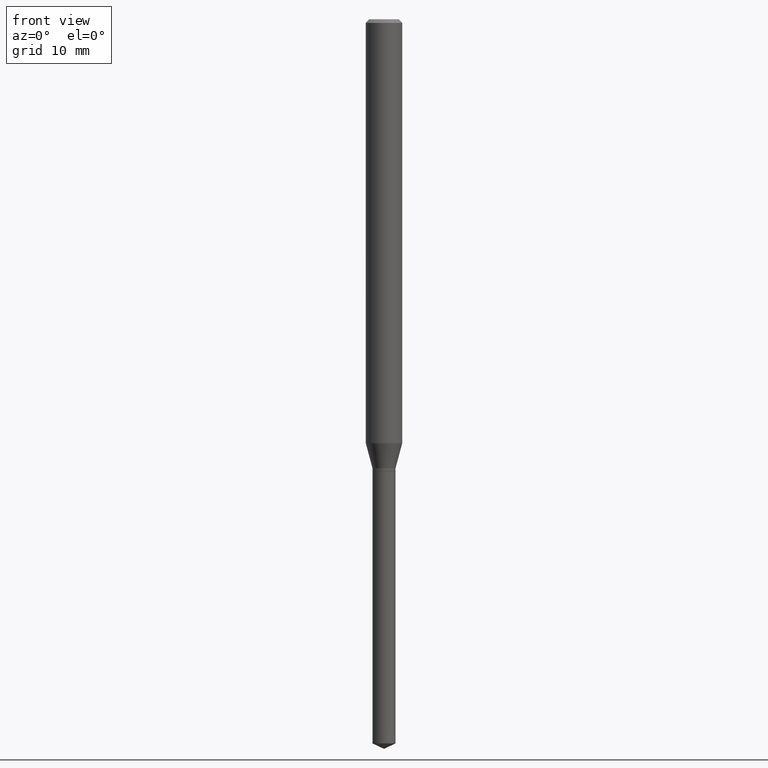
[diagram: clean part render]
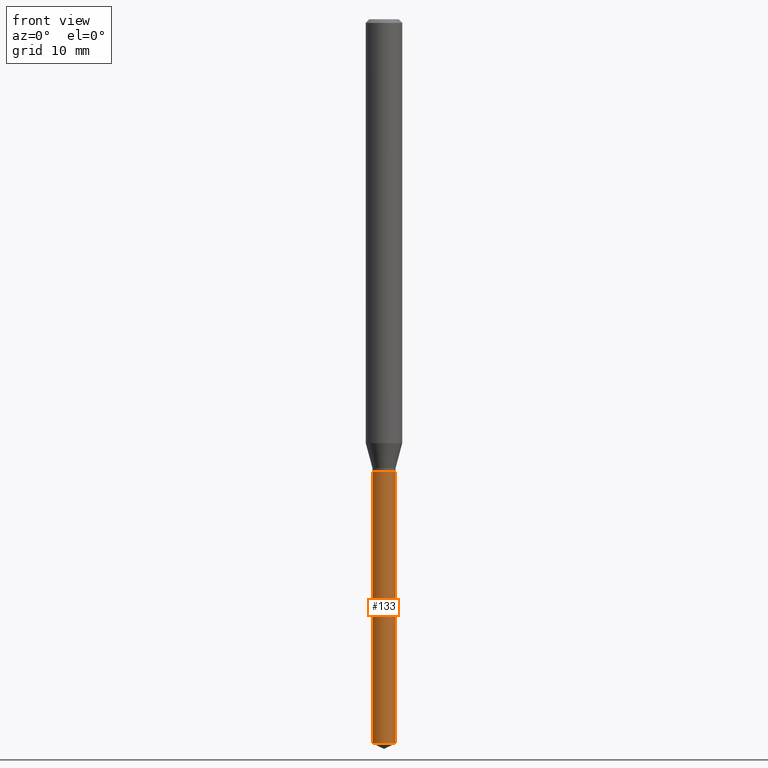
[diagram: same view with one face highlighted and labeled with its STEP entity id]
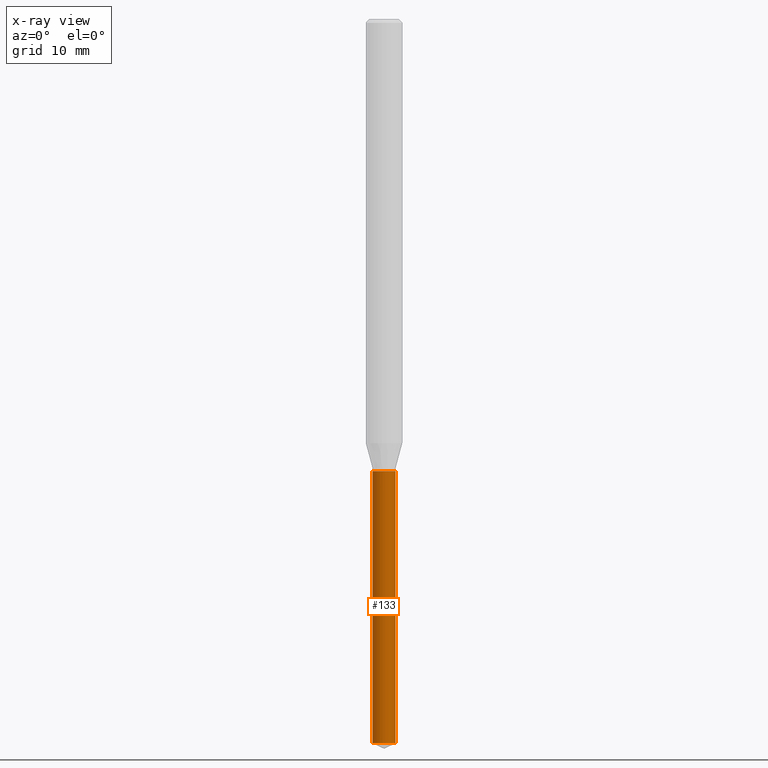
[diagram: x-ray of the same camera — body ghosted, the highlighted face saturated]
A machine part, front view. The second image highlights one B-rep face of the part: STEP entity #133.
The next image is the same camera in x-ray: the body ghosted, the highlighted face saturated — about 0% of this face is hidden behind the body in this view.
In plain terms, the highlighted cylindrical surface (edge-blend (fillet) strip) has radius 0.95 mm, axis along (-0, 0, 1).
Its self-contained STEP definition (entity closure, byte-faithful):
#9 = DIRECTION ( 'NONE',  ( -2.445468806185136597E-29, 3.491481338843145583E-15, 1.000000000000000000 ) ) ;
#16 = DIRECTION ( 'NONE',  ( -2.445468806185136597E-29, 3.491481338843145583E-15, 1.000000000000000000 ) ) ;
#20 = CIRCLE ( 'NONE', #252, 0.03740000000000000269 ) ;
#61 = DIRECTION ( 'NONE',  ( -2.445468806185136597E-29, 3.491481338843145583E-15, 1.000000000000000000 ) ) ;
#77 = AXIS2_PLACEMENT_3D ( 'NONE', #343, #9, #231 ) ;
#85 = CARTESIAN_POINT ( 'NONE',  ( -0.03740000000000000269, -4.847182289427624999E-15, -1.464399999999999924 ) ) ;
#91 = LINE ( 'NONE', #237, #463 ) ;
#104 = CARTESIAN_POINT ( 'NONE',  ( -0.03740000000000000269, -6.383713560400863515E-15, -1.464399999999999924 ) ) ;
#127 = EDGE_CURVE ( 'NONE', #303, #354, #208, .T. ) ;
#133 = ADVANCED_FACE ( 'NONE', ( #461 ), #236, .T. ) ;
#151 = EDGE_CURVE ( 'NONE', #407, #354, #91, .T. ) ;
#168 = ORIENTED_EDGE ( 'NONE', *, *, #127, .F. ) ;
#169 = DIRECTION ( 'NONE',  ( 1.000000000000000000, -6.982962677686274599E-15, 0.000000000000000000 ) ) ;
#204 = VERTEX_POINT ( 'NONE', #464 ) ;
#208 = CIRCLE ( 'NONE', #77, 0.03740000000000000269 ) ;
#223 = EDGE_CURVE ( 'NONE', #204, #303, #270, .T. ) ;
#231 = DIRECTION ( 'NONE',  ( 1.000000000000000000, -6.982962677686274599E-15, 0.000000000000000000 ) ) ;
#236 = CYLINDRICAL_SURFACE ( 'NONE', #262, 0.03740000000000000269 ) ;
#237 = CARTESIAN_POINT ( 'NONE',  ( 0.03740000000000000269, -5.374088076747368790E-15, -1.464399999999999924 ) ) ;
#252 = AXIS2_PLACEMENT_3D ( 'NONE', #293, #61, #169 ) ;
#262 = AXIS2_PLACEMENT_3D ( 'NONE', #349, #16, #431 ) ;
#263 = ORIENTED_EDGE ( 'NONE', *, *, #390, .T. ) ;
#270 = LINE ( 'NONE', #85, #295 ) ;
#293 = CARTESIAN_POINT ( 'NONE',  ( 5.733548573088630177E-29, -8.185987814548377053E-15, -2.344560093585003280 ) ) ;
#295 = VECTOR ( 'NONE', #383, 39.37007874015748143 ) ;
#303 = VERTEX_POINT ( 'NONE', #104 ) ;
#318 = CARTESIAN_POINT ( 'NONE',  ( 0.03740000000000000269, -5.374088076747368790E-15, -1.464399999999999924 ) ) ;
#343 = CARTESIAN_POINT ( 'NONE',  ( 3.581144519777514022E-29, -5.112925272601902389E-15, -1.464399999999999924 ) ) ;
#349 = CARTESIAN_POINT ( 'NONE',  ( 3.581144519777514022E-29, -5.112925272601902389E-15, -1.464399999999999924 ) ) ;
#354 = VERTEX_POINT ( 'NONE', #318 ) ;
#383 = DIRECTION ( 'NONE',  ( -2.445468806185136877E-29, 3.491481338843145188E-15, 1.000000000000000000 ) ) ;
#390 = EDGE_CURVE ( 'NONE', #204, #407, #20, .T. ) ;
#397 = ORIENTED_EDGE ( 'NONE', *, *, #223, .F. ) ;
#406 = CARTESIAN_POINT ( 'NONE',  ( 0.03739999999999999575, -8.447150618693843453E-15, -2.344560093585003280 ) ) ;
#407 = VERTEX_POINT ( 'NONE', #406 ) ;
#431 = DIRECTION ( 'NONE',  ( 1.000000000000000000, -6.982962677686274599E-15, 0.000000000000000000 ) ) ;
#444 = EDGE_LOOP ( 'NONE', ( #397, #263, #446, #168 ) ) ;
#446 = ORIENTED_EDGE ( 'NONE', *, *, #151, .T. ) ;
#461 = FACE_OUTER_BOUND ( 'NONE', #444, .T. ) ;
#463 = VECTOR ( 'NONE', #470, 39.37007874015748143 ) ;
#464 = CARTESIAN_POINT ( 'NONE',  ( -0.03739999999999999575, -7.920244831374100452E-15, -2.344560093585003280 ) ) ;
#470 = DIRECTION ( 'NONE',  ( -2.445468806185136877E-29, 3.491481338843145188E-15, 1.000000000000000000 ) ) ;